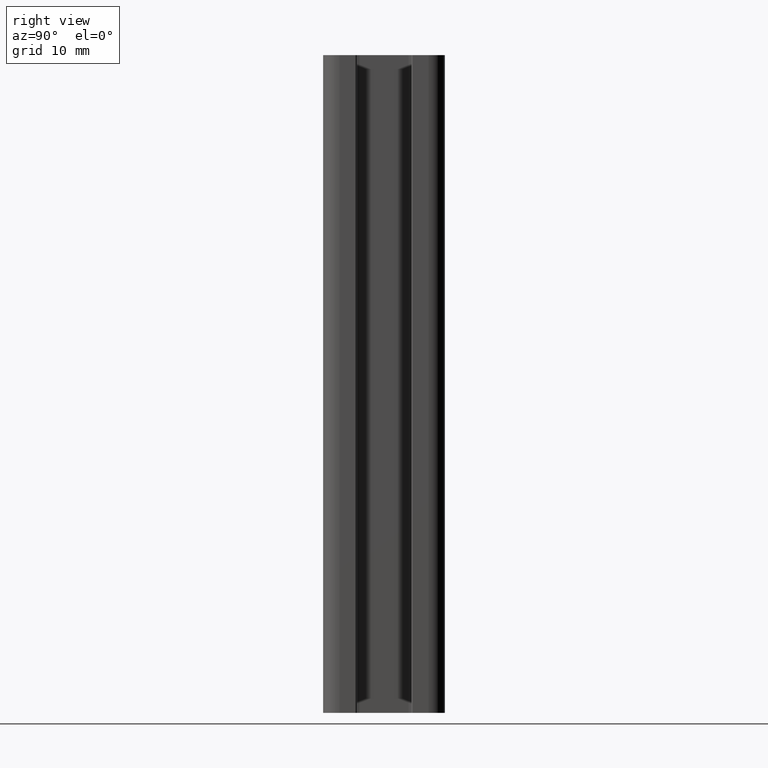
[diagram: clean part render]
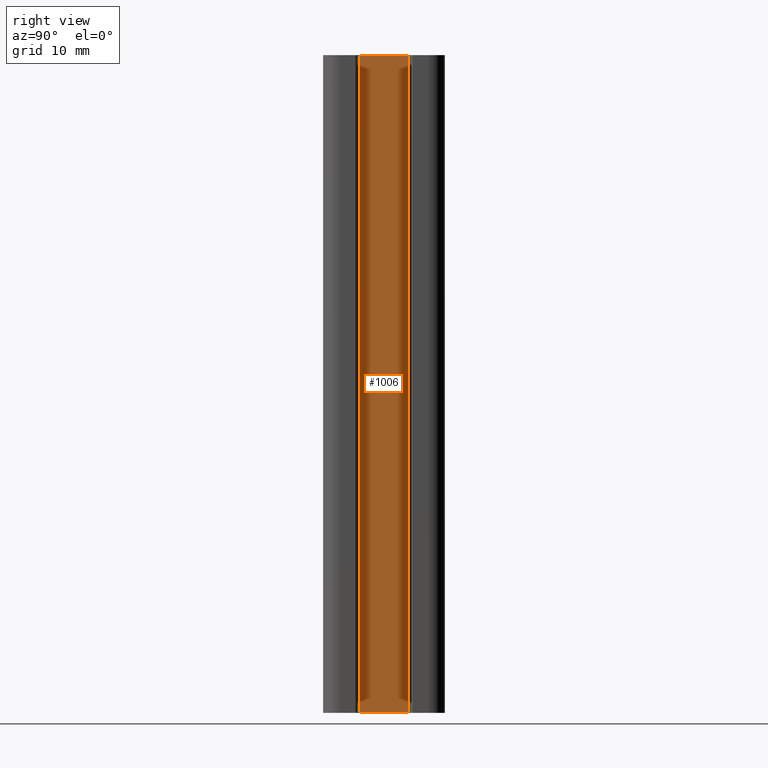
[diagram: same view with one face highlighted and labeled with its STEP entity id]
A machine part, right view. The second image highlights one B-rep face of the part: STEP entity #1006.
In plain terms, the highlighted planar face has unit normal (-1, 0, 0).
Its self-contained STEP definition (entity closure, byte-faithful):
#31=PLANE('',#1086);
#74=FACE_OUTER_BOUND('',#126,.T.);
#126=EDGE_LOOP('',(#771,#772,#773,#774));
#212=LINE('',#1609,#318);
#213=LINE('',#1613,#319);
#214=LINE('',#1615,#320);
#215=LINE('',#1616,#321);
#318=VECTOR('',#1300,100.);
#319=VECTOR('',#1305,7.4);
#320=VECTOR('',#1306,100.);
#321=VECTOR('',#1307,7.4);
#467=VERTEX_POINT('',#1606);
#468=VERTEX_POINT('',#1608);
#469=VERTEX_POINT('',#1612);
#470=VERTEX_POINT('',#1614);
#593=EDGE_CURVE('',#468,#467,#212,.T.);
#595=EDGE_CURVE('',#469,#467,#213,.T.);
#596=EDGE_CURVE('',#470,#469,#214,.T.);
#597=EDGE_CURVE('',#468,#470,#215,.T.);
#771=ORIENTED_EDGE('',*,*,#595,.F.);
#772=ORIENTED_EDGE('',*,*,#596,.F.);
#773=ORIENTED_EDGE('',*,*,#597,.F.);
#774=ORIENTED_EDGE('',*,*,#593,.T.);
#1006=ADVANCED_FACE('',(#74),#31,.F.);
#1086=AXIS2_PLACEMENT_3D('',#1611,#1303,#1304);
#1300=DIRECTION('',(0.,0.,1.));
#1303=DIRECTION('center_axis',(-1.,1.72759704439982E-12,0.));
#1304=DIRECTION('ref_axis',(-1.72768466200068E-12,-1.,0.));
#1305=DIRECTION('',(1.72759704439982E-12,1.,0.));
#1306=DIRECTION('',(0.,0.,1.));
#1307=DIRECTION('',(-1.72759704439982E-12,-1.,0.));
#1606=CARTESIAN_POINT('',(8.80000000001278,3.69999999999998,100.));
#1608=CARTESIAN_POINT('',(8.80000000001278,3.69999999999998,0.));
#1609=CARTESIAN_POINT('',(8.80000000001278,3.69999999999998,0.));
#1611=CARTESIAN_POINT('Origin',(8.80000000001278,3.69999999999998,0.));
#1612=CARTESIAN_POINT('',(8.8,-3.70000000000002,100.));
#1613=CARTESIAN_POINT('',(8.80000000000959,1.84999999999239,100.));
#1614=CARTESIAN_POINT('',(8.8,-3.70000000000002,0.));
#1615=CARTESIAN_POINT('',(8.8,-3.70000000000002,0.));
#1616=CARTESIAN_POINT('',(8.80000000000959,1.84999999999239,0.));